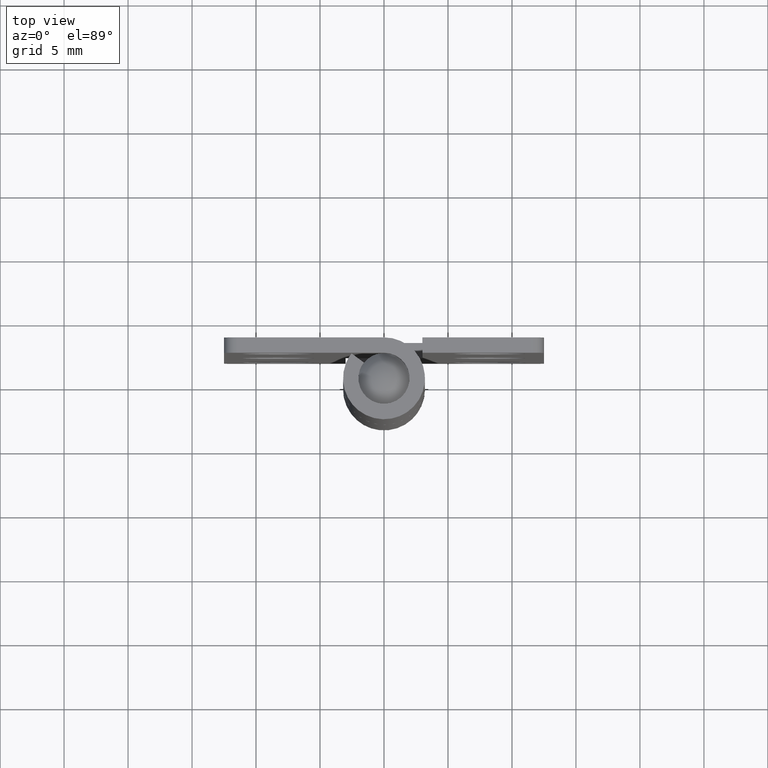
[diagram: clean part render]
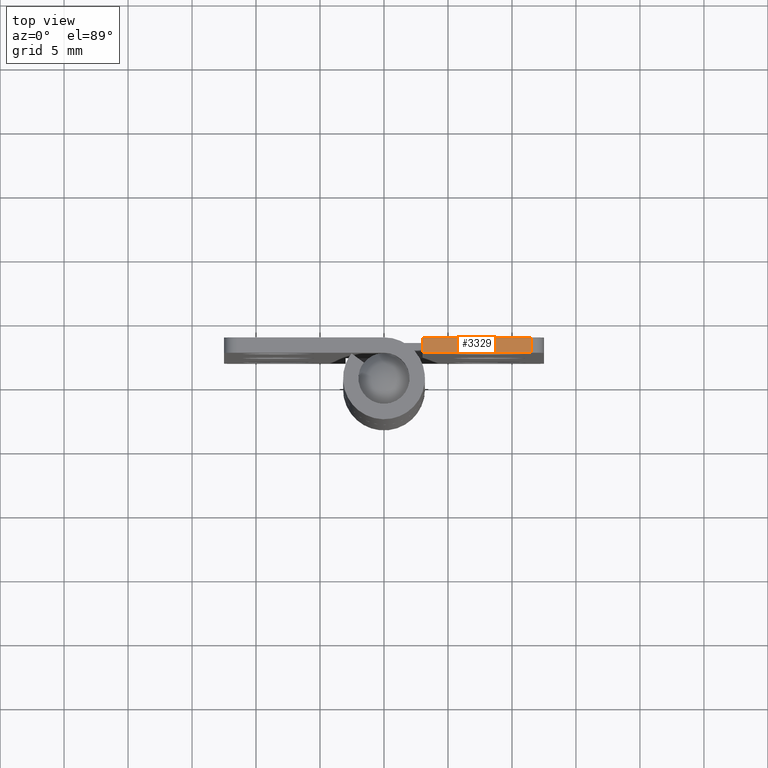
[diagram: same view with one face highlighted and labeled with its STEP entity id]
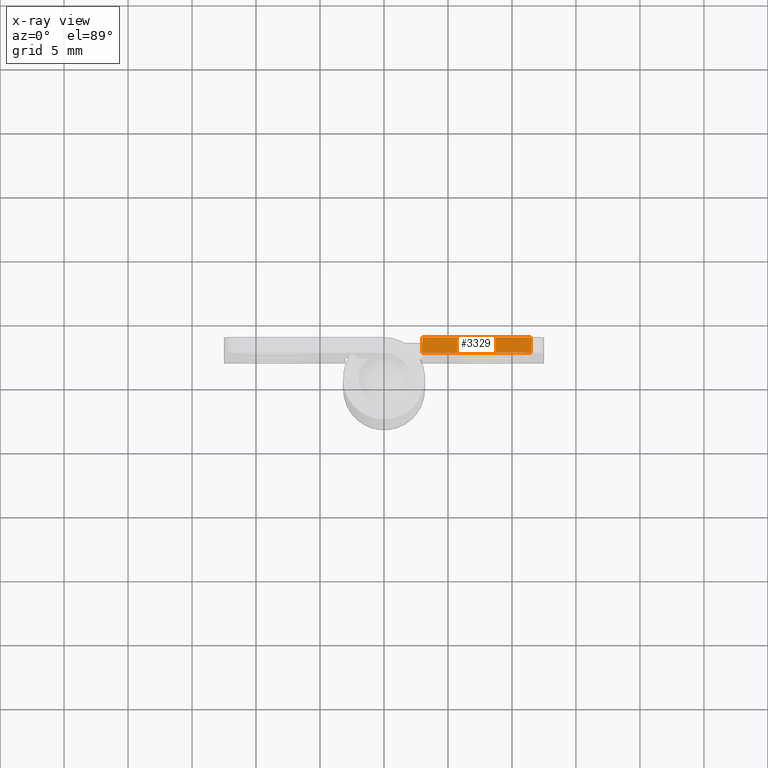
[diagram: x-ray of the same camera — body ghosted, the highlighted face saturated]
A machine part, top view. The second image highlights one B-rep face of the part: STEP entity #3329.
The next image is the same camera in x-ray: the body ghosted, the highlighted face saturated — about 0% of this face is hidden behind the body in this view.
In plain terms, the highlighted face is a freeform B-spline surface patch.
Its self-contained STEP definition (entity closure, byte-faithful):
#2845=CARTESIAN_POINT('',(3.0,2.0,50.0));
#2846=VERTEX_POINT('',#2845);
#2852=CARTESIAN_POINT('',(3.0,3.200000999999955,50.0));
#2853=VERTEX_POINT('',#2852);
#2854=CARTESIAN_POINT('',(3.0,3.200000999999955,50.0));
#2855=CARTESIAN_POINT('',(3.0,2.0,50.0));
#2856=QUASI_UNIFORM_CURVE('',1,(#2854,#2855),.UNSPECIFIED.,.F.,.U.);
#2857=EDGE_CURVE('',#2853,#2846,#2856,.T.);
#2960=CARTESIAN_POINT('',(11.500000000000000,2.0,50.0));
#2961=VERTEX_POINT('',#2960);
#2982=CARTESIAN_POINT('',(11.500000000000000,3.200001000000000,50.0));
#2983=VERTEX_POINT('',#2982);
#2997=CARTESIAN_POINT('',(11.500000000000000,3.200001000000000,50.0));
#2998=CARTESIAN_POINT('',(11.500000000000000,2.0,50.0));
#2999=QUASI_UNIFORM_CURVE('',1,(#2997,#2998),.UNSPECIFIED.,.F.,.U.);
#3000=EDGE_CURVE('',#2983,#2961,#2999,.T.);
#3253=CARTESIAN_POINT('',(11.500000000000000,2.0,50.0));
#3254=CARTESIAN_POINT('',(3.0,2.0,50.0));
#3255=QUASI_UNIFORM_CURVE('',1,(#3253,#3254),.UNSPECIFIED.,.F.,.U.);
#3256=EDGE_CURVE('',#2961,#2846,#3255,.T.);
#3287=CARTESIAN_POINT('',(3.0,3.200000999999955,50.0));
#3288=CARTESIAN_POINT('',(11.500000000000000,3.200001000000000,50.0));
#3289=QUASI_UNIFORM_CURVE('',1,(#3287,#3288),.UNSPECIFIED.,.F.,.U.);
#3290=EDGE_CURVE('',#2853,#2983,#3289,.T.);
#3318=CARTESIAN_POINT('',(2.575425016474649,1.940059952375835,50.0));
#3319=CARTESIAN_POINT('',(11.924575211513121,1.940059952375835,50.0));
#3320=CARTESIAN_POINT('',(2.575425016474649,3.259941079810700,50.0));
#3321=CARTESIAN_POINT('',(11.924575211513121,3.259941079810700,50.0));
#3322=B_SPLINE_SURFACE_WITH_KNOTS('',1,1,((#3318,#3320),(#3319,#3321)),.UNSPECIFIED.,.F.,.F.,.U.,(2,2),(2,2),(0.0,9.349150195038469),(0.041708334948495,0.958291687403247),.UNSPECIFIED.);
#3323=ORIENTED_EDGE('',*,*,#3290,.F.);
#3324=ORIENTED_EDGE('',*,*,#2857,.T.);
#3325=ORIENTED_EDGE('',*,*,#3256,.F.);
#3326=ORIENTED_EDGE('',*,*,#3000,.F.);
#3327=EDGE_LOOP('',(#3323,#3324,#3325,#3326));
#3328=FACE_OUTER_BOUND('',#3327,.T.);
#3329=ADVANCED_FACE('',(#3328),#3322,.T.);